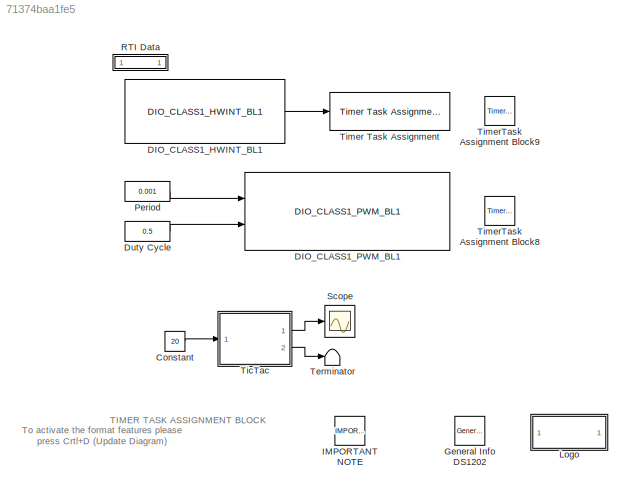
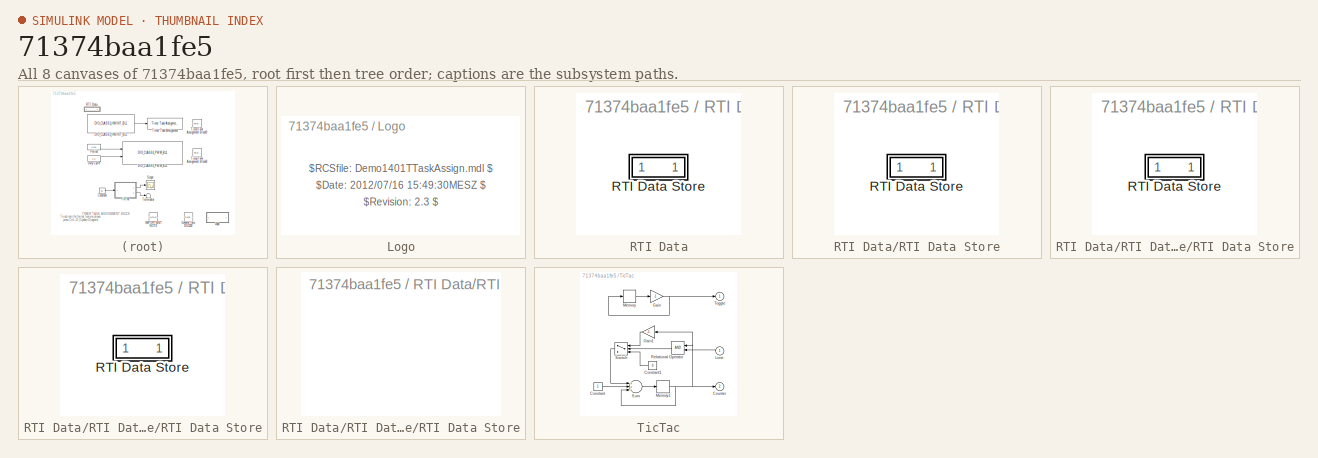
[diagram: thumbnail index - all 8 canvases of the model, root first then tree order]
MODEL slx_71374baa1fe5
KIND model
CONFIG AbsTol = auto
CONFIG FixedStep = 0.001
CONFIG MaxStep = auto
CONFIG MinStep = auto
CONFIG PostLoadFcn = , if any(exist('dsrtsu_mdlpostloadfcn', 'file') == [2, 3, 6]), try dsrtsu_mdlpostloadfcn('Execute', bdroot); catch fprintf('Error in PostLoadFcn (dsrtsu_mdlpostloadfcn) for model "%s":\n %s\n', bdroot, lasterr); end, end, \n
CONFIG RelTol = 1e-3
CONFIG SampleTimeConstraint = Unconstrained
CONFIG Solver = ode1
CONFIG SolverMode = Auto
CONFIG SolverName = ode1
CONFIG StartTime = 0.0
CONFIG StopTime = Inf
BLOCK [Constant] Constant
  Value = 20
BLOCK [Reference] DIO_CLASS1_HWINT_BL1  REF=rti1202lib_dio_class1/DIO_CLASS1_HWINT_BL1
  Ports = [0, 1]
  SourceBlock = rti1202lib_dio_class1/DIO_CLASS1_HWINT_BL1
  SourceType = RTI
BLOCK [Reference] DIO_CLASS1_PWM_BL1  REF=rti1202lib_dio_class1/DIO_CLASS1_PWM_BL1
  Ports = [2]
  SourceBlock = rti1202lib_dio_class1/DIO_CLASS1_PWM_BL1
  SourceType = RTI
BLOCK [Constant] Duty Cycle
  Value = 0.5
BLOCK [Reference] General Info DS1202  REF=RTITaskLibDemoLibInfo/General Info
  Ports = []
  SourceBlock = RTITaskLibDemoLibInfo/General Info
BLOCK [Reference] IMPORTANT NOTE  REF=RTITaskLibDemoLibInfo/IMPORTANT NOTE
  Ports = []
  SourceBlock = RTITaskLibDemoLibInfo/IMPORTANT NOTE
BLOCK [SubSystem] Logo
  OpenFcn = ;
  Ports = []
  RequestExecContextInheritance = off
  Variant = off
BLOCK [Constant] Period
  Value = 0.001
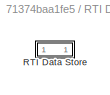
BLOCK [SubSystem] RTI Data
  CopyFcn = if exist('rtidc'), try,  rtidc('DataHostBlockClbCopy', gcbh); catch, disp(['Warning: ''CopyFcn'' for RTI Data block failed: ' lasterr]); end, end,
  DeleteFcn = if exist('rtidc'), try,  rtidc('DataHostBlockClbDelete', gcbh); catch, disp(['Warning: ''DeleteFcn'' for RTI Data block failed: ' lasterr]); end, end,
  LoadFcn = if exist('rtidc'), try,  rtidc('DataHostBlockClbLoad', gcbh); catch, disp(['Warning: ''LoadFcn'' for RTI Data block failed: ' lasterr]); end, end,
  ModelCloseFcn = if exist('rtidc'), try,  rtidc('DataHostBlockClbModelClose', gcbh); catch, disp(['Warning: ''ModelCloseFcn'' for RTI Data block failed: ' lasterr]); end, end,
  NameChangeFcn = if exist('rtidc'), try,  rtidc('DataHostBlockClbNameChange', gcbh); catch, disp(['Warning: ''NameChangeFcn'' for RTI Data block failed: ' lasterr]); end, end,
  Ports = []
  PostSaveFcn = if exist('rtidc'), try,  rtidc('DataHostBlockClbPostSave', gcbh); catch, disp(['Warning: ''PostSaveFcn'' for RTI Data block failed: ' lasterr]); end, end,
  PreSaveFcn = if exist('rtidc'), try,  rtidc('DataHostBlockClbPreSave', gcbh); catch, disp(['Warning: ''PreSaveFcn'' for RTI Data block failed: ' lasterr]); end, end,
  RequestExecContextInheritance = off
  Tag = struct('RTIDataServer',struct('RTIDataServerVs','2','RTIModelDescription','struct(''main'',''Demo1202TTaskAssign'',''sub'','''',''isMp'',0)'))
  Variant = off
BLOCK [SubSystem] RTI Data/RTI Data Store
  Ports = []
  RequestExecContextInheritance = off
  Tag = struct('private',struct('version',struct('dsVer',uint32(2),'dsVerCreation',uint32(2),'RTI',struct('ver','X.Y.Z','type','RTI1005')),'access',struct('type','Model','isPerm',1,'created',['16-Feb-2001 13:45:51'],'modified',['03-Feb-2017 15:09:09'],'location','')),'public',struct('main',struct('data',[]),'sub',struct('name',{{'Demo1202TTaskAssign'}},'data',{{struct('TH',struct('thTaskInfo',struct('task...<+1201ch>
  Variant = off
BLOCK [SubSystem] RTI Data/RTI Data Store/RTI Data Store
  Ports = []
  RequestExecContextInheritance = off
  Variant = off
BLOCK [SubSystem] RTI Data/RTI Data Store/RTI Data Store/RTI Data Store
  Ports = []
  RequestExecContextInheritance = off
  Variant = off
BLOCK [SubSystem] RTI Data/RTI Data Store/RTI Data Store/RTI Data Store/RTI Data Store
  Ports = []
  RequestExecContextInheritance = off
  Variant = off
BLOCK [Scope] Scope
  Ports = [1]
  ScopeSpecificationString = C++SS(StrPVP('Location','[188, 365, 512, 604]'),StrPVP('Open','off'),MxPVP('AxesTitles',24,'struct(''axes1'',''%<SignalLabel>'')'),StrPVP('ShowLegends','off'),StrPVP('DataFormat','StructureWithTime'),StrPVP('BlockParamSampleTime','0'),StrPVP('LimitDataPoints','on'),StrPVP('Decimation','1'),StrPVP('BlockParamSampleInput','off'))
BLOCK [Terminator] Terminator
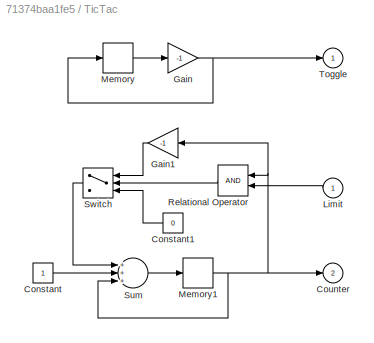
BLOCK [SubSystem] TicTac
  Ports = [1, 2]
  RequestExecContextInheritance = off
  Variant = off
BLOCK [Constant] TicTac/Constant
BLOCK [Constant] TicTac/Constant1
  Value = 0
BLOCK [Outport] TicTac/Counter
  IconDisplay = Port number
  Port = 2
BLOCK [Gain] TicTac/Gain
  Gain = -1
BLOCK [Gain] TicTac/Gain1
  Gain = -1
BLOCK [Inport] TicTac/Limit
  IconDisplay = Port number
BLOCK [Memory] TicTac/Memory
  InheritSampleTime = on
  X0 = -1
BLOCK [Memory] TicTac/Memory1
  InheritSampleTime = on
BLOCK [RelationalOperator] TicTac/Relational Operator
  Ports = [2, 1]
BLOCK [Sum] TicTac/Sum
  Inputs = +++
  Ports = [3, 1]
BLOCK [Switch] TicTac/Switch
  Threshold = 1
BLOCK [Outport] TicTac/Toggle
  IconDisplay = Port number
BLOCK [Reference] Timer Task Assignment  REF=rtitasklib/Timer Task Assignment
  Ports = [1]
  SourceBlock = rtitasklib/Timer Task Assignment
  SourceType = RTI
BLOCK [Reference] TimerTask Assignment Block8  REF=RTITaskLibDemoLibInfo/TimerTask 
Assignment 
Block8
  Ports = []
  SourceBlock = RTITaskLibDemoLibInfo/TimerTask \nAssignment \nBlock8
BLOCK [Reference] TimerTask Assignment Block9  REF=RTITaskLibDemoLibInfo/TimerTask 
Assignment 
Block9
  Ports = []
  SourceBlock = RTITaskLibDemoLibInfo/TimerTask \nAssignment \nBlock9
ANNOTATION (root): TIMER TASK ASSIGNMENT BLOCK
ANNOTATION (root): To activate the format features please press Crtl+D (Update Diagram)
ANNOTATION Logo: $Date: 2012/07/16 15:49:30MESZ $
ANNOTATION Logo: $RCSfile: Demo1401TTaskAssign.mdl $
ANNOTATION Logo: $Revision: 2.3 $
LINE Constant:1 -> TicTac:1
LINE DIO_CLASS1_HWINT_BL1:1 -> Timer Task Assignment:1
LINE Duty Cycle:1 -> DIO_CLASS1_PWM_BL1:2
LINE Period:1 -> DIO_CLASS1_PWM_BL1:1
LINE TicTac/Constant1:1 -> TicTac/Switch:3
LINE TicTac/Constant:1 -> TicTac/Sum:2
LINE TicTac/Gain1:1 -> TicTac/Switch:1
NET TicTac/Gain:1 -> TicTac/Memory:1, TicTac/Toggle:1
LINE TicTac/Limit:1 -> TicTac/Relational Operator:2
NET TicTac/Memory1:1 -> TicTac/Counter:1, TicTac/Gain1:1, TicTac/Relational Operator:1, TicTac/Sum:3
LINE TicTac/Memory:1 -> TicTac/Gain:1
LINE TicTac/Relational Operator:1 -> TicTac/Switch:2
LINE TicTac/Sum:1 -> TicTac/Memory1:1
LINE TicTac/Switch:1 -> TicTac/Sum:1
LINE TicTac:1 -> Scope:1
LINE TicTac:2 -> Terminator:1
note: NET lines group one-source signal fan-out (src -> all destinations, sorted); 1:1 wires keep LINE
